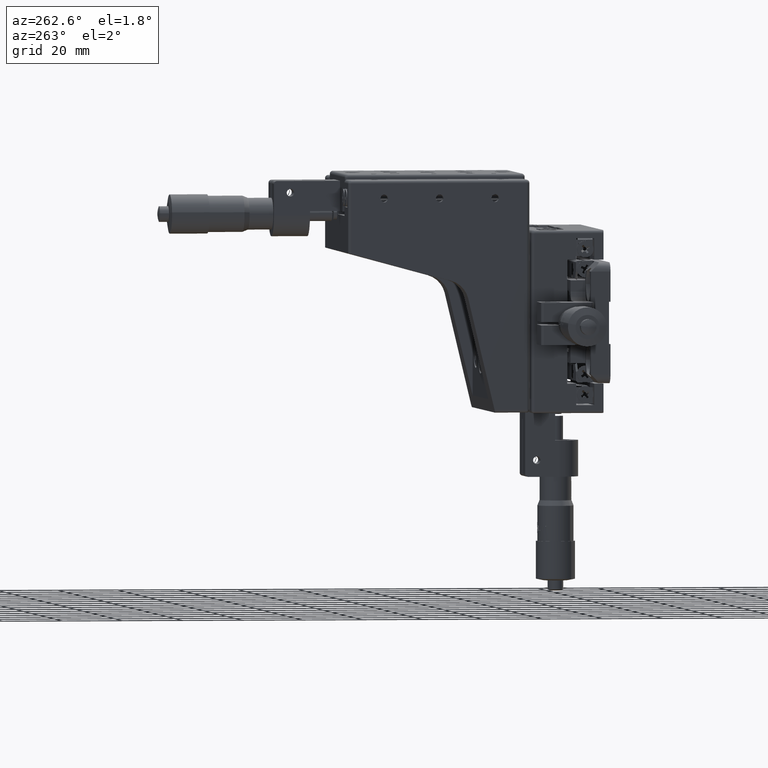
[diagram: clean part render]
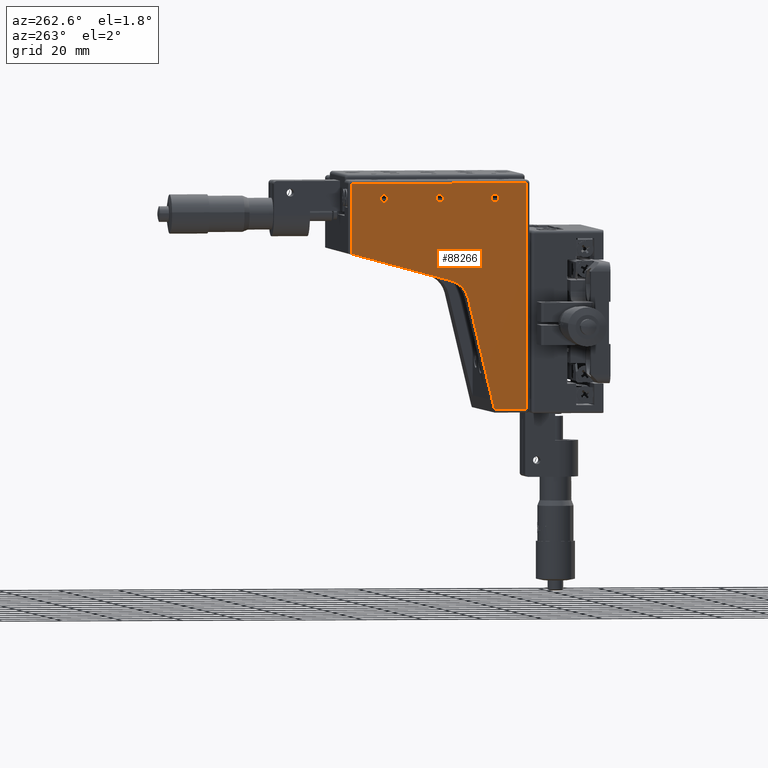
[diagram: same view with one face highlighted and labeled with its STEP entity id]
A machine part, auxiliary view. The second image highlights one B-rep face of the part: STEP entity #88266.
In plain terms, the highlighted planar face has unit normal (-1, 0, 0).
Its self-contained STEP definition (entity closure, byte-faithful):
#400 = CARTESIAN_POINT ( 'NONE',  ( -30.25000000000031300, 36.30026918336592700, -29.99999999999778000 ) ) ;
#1657 = AXIS2_PLACEMENT_3D ( 'NONE', #61229, #20239, #68110 ) ;
#1685 = ORIENTED_EDGE ( 'NONE', *, *, #8159, .F. ) ;
#4521 = LINE ( 'NONE', #28525, #75025 ) ;
#4872 = VERTEX_POINT ( 'NONE', #28361 ) ;
#5239 = DIRECTION ( 'NONE',  ( -2.856776311297510600E-015, -0.9650248887684033100, -0.2621582805435118700 ) ) ;
#6692 = EDGE_CURVE ( 'NONE', #26123, #75154, #53405, .T. ) ;
#7202 = VECTOR ( 'NONE', #5239, 1000.000000000000200 ) ;
#7475 = VERTEX_POINT ( 'NONE', #70395 ) ;
#8159 = EDGE_CURVE ( 'NONE', #33068, #25079, #21130, .T. ) ;
#8653 = VERTEX_POINT ( 'NONE', #18694 ) ;
#9005 = ORIENTED_EDGE ( 'NONE', *, *, #86480, .F. ) ;
#9578 = EDGE_CURVE ( 'NONE', #41955, #13130, #10210, .T. ) ;
#10210 = LINE ( 'NONE', #79981, #26196 ) ;
#10746 = AXIS2_PLACEMENT_3D ( 'NONE', #64397, #23382, #71202 ) ;
#11515 = ORIENTED_EDGE ( 'NONE', *, *, #9578, .T. ) ;
#12622 = EDGE_CURVE ( 'NONE', #25634, #4872, #61749, .T. ) ;
#13130 = VERTEX_POINT ( 'NONE', #73549 ) ;
#13487 = ORIENTED_EDGE ( 'NONE', *, *, #12622, .T. ) ;
#13972 = DIRECTION ( 'NONE',  ( -1.000000000000000000, 9.801187639273051100E-017, 1.033201302291786500E-014 ) ) ;
#14069 = ORIENTED_EDGE ( 'NONE', *, *, #22419, .T. ) ;
#15177 = VECTOR ( 'NONE', #68596, 1000.000000000000200 ) ;
#15333 = ORIENTED_EDGE ( 'NONE', *, *, #41412, .T. ) ;
#15434 = FACE_OUTER_BOUND ( 'NONE', #54871, .T. ) ;
#16271 = CARTESIAN_POINT ( 'NONE',  ( -30.24999999999956300, 54.79999999999989800, 42.25000000000222400 ) ) ;
#16542 = DIRECTION ( 'NONE',  ( -1.033201302291786600E-014, -2.374402757743496300E-017, -1.000000000000000000 ) ) ;
#17314 = LINE ( 'NONE', #400, #15177 ) ;
#17971 = ORIENTED_EDGE ( 'NONE', *, *, #59458, .T. ) ;
#18480 = CARTESIAN_POINT ( 'NONE',  ( -30.25000000000030200, 25.79999999999989800, -28.99999999999777600 ) ) ;
#18694 = CARTESIAN_POINT ( 'NONE',  ( -30.24999999999991800, 45.30799999999989300, 7.814000000002215200 ) ) ;
#18728 = DIRECTION ( 'NONE',  ( -1.000000000000000000, 9.801187639273051100E-017, 1.033201302291786500E-014 ) ) ;
#20029 = ORIENTED_EDGE ( 'NONE', *, *, #41714, .F. ) ;
#20239 = DIRECTION ( 'NONE',  ( -1.000000000000000000, 9.801187639273051100E-017, 1.033201302291786500E-014 ) ) ;
#20248 = CARTESIAN_POINT ( 'NONE',  ( -30.24999999999993600, 53.09020302999081800, 5.960000000002220400 ) ) ;
#21130 = CIRCLE ( 'NONE', #1657, 1.250000000000001100 ) ;
#21245 = EDGE_LOOP ( 'NONE', ( #9005, #1685 ) ) ;
#21442 = CIRCLE ( 'NONE', #65764, 1.250000000000001100 ) ;
#22419 = EDGE_CURVE ( 'NONE', #38387, #79563, #4521, .T. ) ;
#22524 = PLANE ( 'NONE',  #10746 ) ;
#23382 = DIRECTION ( 'NONE',  ( -1.000000000000000000, 9.801187639273051100E-017, 1.033201302291786600E-014 ) ) ;
#24009 = DIRECTION ( 'NONE',  ( -1.000000000000000000, 9.801187639273051100E-017, 1.033201302291786500E-014 ) ) ;
#25079 = VERTEX_POINT ( 'NONE', #50381 ) ;
#25278 = DIRECTION ( 'NONE',  ( -1.000000000000000000, 9.801187639273051100E-017, 1.033201302291786500E-014 ) ) ;
#25287 = EDGE_LOOP ( 'NONE', ( #58065, #20029 ) ) ;
#25634 = VERTEX_POINT ( 'NONE', #70316 ) ;
#26123 = VERTEX_POINT ( 'NONE', #38155 ) ;
#26196 = VECTOR ( 'NONE', #45890, 1000.000000000000000 ) ;
#26243 = CARTESIAN_POINT ( 'NONE',  ( -30.24999999999959100, 36.29999999999989800, 39.75000000000222400 ) ) ;
#26369 = LINE ( 'NONE', #69659, #78789 ) ;
#26533 = CARTESIAN_POINT ( 'NONE',  ( -30.24999999999955900, 73.29999999999989800, 42.25000000000222400 ) ) ;
#27029 = ORIENTED_EDGE ( 'NONE', *, *, #79350, .T. ) ;
#27140 = DIRECTION ( 'NONE',  ( 1.040834085586084300E-014, 0.0000000000000000000, 1.000000000000000000 ) ) ;
#28361 = CARTESIAN_POINT ( 'NONE',  ( -30.24999999999985800, 50.99299999999988800, 13.68021628265887000 ) ) ;
#28525 = CARTESIAN_POINT ( 'NONE',  ( -30.25000000000029800, 53.09020302999081800, -28.99999999999777600 ) ) ;
#30074 = LINE ( 'NONE', #50900, #43984 ) ;
#32334 = CIRCLE ( 'NONE', #70646, 1.250000000000001100 ) ;
#33068 = VERTEX_POINT ( 'NONE', #26243 ) ;
#33163 = DIRECTION ( 'NONE',  ( -1.000000000000000000, 9.801187639273051100E-017, 1.033201302291786500E-014 ) ) ;
#33222 = CARTESIAN_POINT ( 'NONE',  ( -30.24999999999952700, 25.79999999999989800, 46.00000000000221700 ) ) ;
#33568 = FACE_BOUND ( 'NONE', #66181, .T. ) ;
#35230 = DIRECTION ( 'NONE',  ( 1.033201302291786600E-014, 2.374402757743496300E-017, 1.000000000000000000 ) ) ;
#37765 = EDGE_CURVE ( 'NONE', #57521, #7475, #81002, .T. ) ;
#38155 = CARTESIAN_POINT ( 'NONE',  ( -30.24999999999959100, 54.79999999999989800, 39.75000000000222400 ) ) ;
#38387 = VERTEX_POINT ( 'NONE', #55065 ) ;
#39254 = CARTESIAN_POINT ( 'NONE',  ( -30.24999999999975500, 85.29999999999989800, 23.00004236723222600 ) ) ;
#39319 = ORIENTED_EDGE ( 'NONE', *, *, #43159, .T. ) ;
#41412 = EDGE_CURVE ( 'NONE', #13130, #25634, #30074, .T. ) ;
#41664 = CIRCLE ( 'NONE', #54263, 1.250000000000001100 ) ;
#41714 = EDGE_CURVE ( 'NONE', #7475, #57521, #21442, .T. ) ;
#41955 = VERTEX_POINT ( 'NONE', #33222 ) ;
#43159 = EDGE_CURVE ( 'NONE', #8653, #38387, #17314, .T. ) ;
#43984 = VECTOR ( 'NONE', #16542, 1000.000000000000000 ) ;
#45890 = DIRECTION ( 'NONE',  ( 1.535230276239501100E-016, 1.000000000000000000, -2.374402757743618900E-017 ) ) ;
#47438 = AXIS2_PLACEMENT_3D ( 'NONE', #20248, #68118, #27140 ) ;
#50381 = CARTESIAN_POINT ( 'NONE',  ( -30.24999999999956300, 36.29999999999989800, 42.25000000000222400 ) ) ;
#50900 = CARTESIAN_POINT ( 'NONE',  ( -30.24999999999993200, 84.29999999999989800, 5.960000000002220400 ) ) ;
#53405 = CIRCLE ( 'NONE', #65742, 1.250000000000001100 ) ;
#54263 = AXIS2_PLACEMENT_3D ( 'NONE', #66292, #25278, #73108 ) ;
#54867 = DIRECTION ( 'NONE',  ( -1.535230276239501100E-016, -1.000000000000000000, 2.374402757743618900E-017 ) ) ;
#54871 = EDGE_LOOP ( 'NONE', ( #39319, #14069, #27029, #11515, #15333, #13487, #17971 ) ) ;
#54913 = CARTESIAN_POINT ( 'NONE',  ( -30.24999999999957700, 36.29999999999989800, 41.00000000000222400 ) ) ;
#55065 = CARTESIAN_POINT ( 'NONE',  ( -30.25000000000030200, 36.53848071392694400, -28.99999999999777600 ) ) ;
#56935 = ORIENTED_EDGE ( 'NONE', *, *, #72003, .F. ) ;
#57521 = VERTEX_POINT ( 'NONE', #26533 ) ;
#57553 = CIRCLE ( 'NONE', #47438, 8.000000000000000000 ) ;
#58065 = ORIENTED_EDGE ( 'NONE', *, *, #37765, .F. ) ;
#59458 = EDGE_CURVE ( 'NONE', #4872, #8653, #57553, .T. ) ;
#59708 = CARTESIAN_POINT ( 'NONE',  ( -30.24999999999957400, 73.29999999999989800, 41.00000000000222400 ) ) ;
#61229 = CARTESIAN_POINT ( 'NONE',  ( -30.24999999999957700, 36.29999999999989800, 41.00000000000222400 ) ) ;
#61749 = LINE ( 'NONE', #39254, #7202 ) ;
#61799 = DIRECTION ( 'NONE',  ( 1.110223024625155600E-014, 0.0000000000000000000, 1.000000000000000000 ) ) ;
#64397 = CARTESIAN_POINT ( 'NONE',  ( -30.24999999999993600, 53.09020302999081800, 5.960000000002220400 ) ) ;
#65022 = CARTESIAN_POINT ( 'NONE',  ( -30.24999999999957400, 73.29999999999989800, 41.00000000000222400 ) ) ;
#65742 = AXIS2_PLACEMENT_3D ( 'NONE', #74135, #33163, #81029 ) ;
#65764 = AXIS2_PLACEMENT_3D ( 'NONE', #65022, #24009, #71852 ) ;
#66166 = ORIENTED_EDGE ( 'NONE', *, *, #6692, .F. ) ;
#66181 = EDGE_LOOP ( 'NONE', ( #56935, #66166 ) ) ;
#66292 = CARTESIAN_POINT ( 'NONE',  ( -30.24999999999957700, 54.79999999999989800, 41.00000000000222400 ) ) ;
#66626 = DIRECTION ( 'NONE',  ( 1.110223024625155600E-014, 0.0000000000000000000, 1.000000000000000000 ) ) ;
#68110 = DIRECTION ( 'NONE',  ( 1.110223024625155600E-014, 0.0000000000000000000, 1.000000000000000000 ) ) ;
#68118 = DIRECTION ( 'NONE',  ( 1.000000000000000000, -9.801187639273051100E-017, -1.033201302291786500E-014 ) ) ;
#68596 = DIRECTION ( 'NONE',  ( -1.008635857524716100E-014, -0.2317275839231485400, -0.9727807187897692400 ) ) ;
#69659 = CARTESIAN_POINT ( 'NONE',  ( -30.24999999999994000, 25.79999999999989800, 5.960000000002220400 ) ) ;
#69981 = FACE_BOUND ( 'NONE', #21245, .T. ) ;
#70316 = CARTESIAN_POINT ( 'NONE',  ( -30.24999999999975800, 84.29999999999989800, 22.72838276177056100 ) ) ;
#70395 = CARTESIAN_POINT ( 'NONE',  ( -30.24999999999958800, 73.29999999999989800, 39.75000000000222400 ) ) ;
#70646 = AXIS2_PLACEMENT_3D ( 'NONE', #54913, #13972, #61799 ) ;
#71202 = DIRECTION ( 'NONE',  ( 1.033201302291786600E-014, 2.374402757743496300E-017, 1.000000000000000000 ) ) ;
#71852 = DIRECTION ( 'NONE',  ( 1.110223024625155600E-014, 0.0000000000000000000, 1.000000000000000000 ) ) ;
#72003 = EDGE_CURVE ( 'NONE', #75154, #26123, #41664, .T. ) ;
#73108 = DIRECTION ( 'NONE',  ( 1.110223024625155600E-014, 0.0000000000000000000, 1.000000000000000000 ) ) ;
#73549 = CARTESIAN_POINT ( 'NONE',  ( -30.24999999999951700, 84.29999999999989800, 46.00000000000221700 ) ) ;
#74135 = CARTESIAN_POINT ( 'NONE',  ( -30.24999999999957700, 54.79999999999989800, 41.00000000000222400 ) ) ;
#75025 = VECTOR ( 'NONE', #54867, 1000.000000000000000 ) ;
#75154 = VERTEX_POINT ( 'NONE', #16271 ) ;
#78789 = VECTOR ( 'NONE', #35230, 1000.000000000000000 ) ;
#79350 = EDGE_CURVE ( 'NONE', #79563, #41955, #26369, .T. ) ;
#79563 = VERTEX_POINT ( 'NONE', #18480 ) ;
#79981 = CARTESIAN_POINT ( 'NONE',  ( -30.24999999999952400, 53.09020302999081800, 46.00000000000221700 ) ) ;
#81002 = CIRCLE ( 'NONE', #86062, 1.250000000000001100 ) ;
#81029 = DIRECTION ( 'NONE',  ( 1.110223024625155600E-014, 0.0000000000000000000, 1.000000000000000000 ) ) ;
#86062 = AXIS2_PLACEMENT_3D ( 'NONE', #59708, #18728, #66626 ) ;
#86480 = EDGE_CURVE ( 'NONE', #25079, #33068, #32334, .T. ) ;
#88178 = FACE_BOUND ( 'NONE', #25287, .T. ) ;
#88266 = ADVANCED_FACE ( 'NONE', ( #88178, #33568, #69981, #15434 ), #22524, .T. ) ;